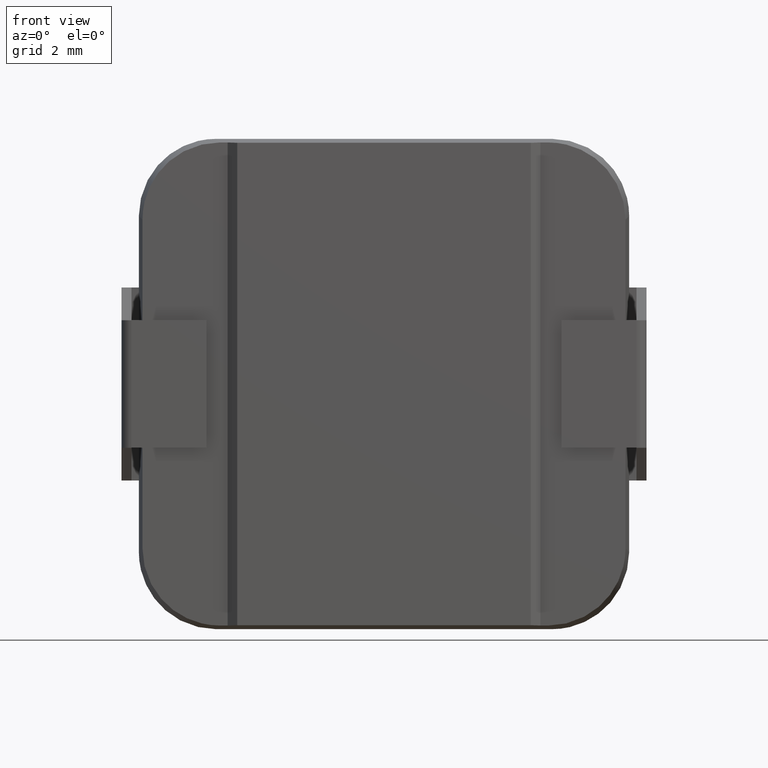
[diagram: clean part render]
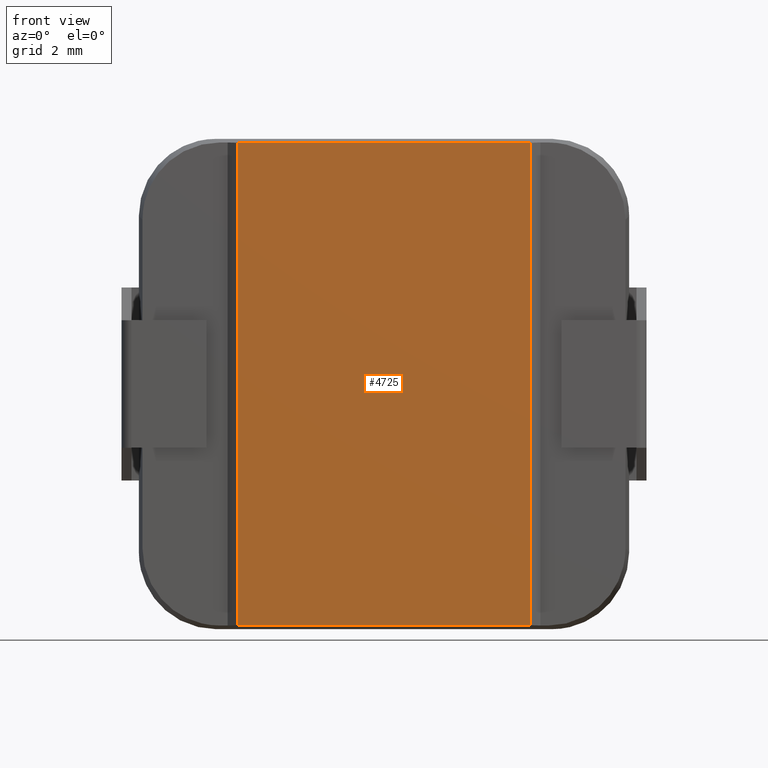
[diagram: same view with one face highlighted and labeled with its STEP entity id]
A machine part, front view. The second image highlights one B-rep face of the part: STEP entity #4725.
In plain terms, the highlighted planar face has unit normal (-0, 1, 0).
Its self-contained STEP definition (entity closure, byte-faithful):
#121 = CARTESIAN_POINT ( 'NONE',  ( 3.800000000000000711, 9.307315673519885459E-16, -6.247983061623334500 ) ) ;
#684 = VECTOR ( 'NONE', #5481, 1000.000000000000000 ) ;
#699 = VECTOR ( 'NONE', #5028, 1000.000000000000000 ) ;
#752 = LINE ( 'NONE', #1662, #684 ) ;
#839 = LINE ( 'NONE', #6047, #699 ) ;
#1124 = CARTESIAN_POINT ( 'NONE',  ( -3.799999999999998934, 0.0000000000000000000, 6.247983061623330059 ) ) ;
#1460 = EDGE_CURVE ( 'NONE', #4351, #5300, #2756, .T. ) ;
#1627 = DIRECTION ( 'NONE',  ( -1.000000000000000000, -0.0000000000000000000, 2.731847993664264205E-16 ) ) ;
#1662 = CARTESIAN_POINT ( 'NONE',  ( -6.350000000000000533, 0.0000000000000000000, 6.247983061623330947 ) ) ;
#1929 = EDGE_LOOP ( 'NONE', ( #5594, #3328, #4066, #5216 ) ) ;
#2015 = DIRECTION ( 'NONE',  ( 0.0000000000000000000, 0.0000000000000000000, 1.000000000000000000 ) ) ;
#2092 = CARTESIAN_POINT ( 'NONE',  ( 3.799999999999995381, 0.0000000000000000000, 6.247983061623329171 ) ) ;
#2366 = DIRECTION ( 'NONE',  ( -0.0000000000000000000, 1.000000000000000000, 0.0000000000000000000 ) ) ;
#2693 = FACE_OUTER_BOUND ( 'NONE', #1929, .T. ) ;
#2756 = LINE ( 'NONE', #4507, #5695 ) ;
#3328 = ORIENTED_EDGE ( 'NONE', *, *, #6263, .T. ) ;
#3547 = LINE ( 'NONE', #5440, #5793 ) ;
#3828 = CARTESIAN_POINT ( 'NONE',  ( -3.799999999999999822, 0.0000000000000000000, -6.247983061623331835 ) ) ;
#4066 = ORIENTED_EDGE ( 'NONE', *, *, #1460, .F. ) ;
#4316 = CARTESIAN_POINT ( 'NONE',  ( 0.0000000000000000000, 0.0000000000000000000, 0.0000000000000000000 ) ) ;
#4339 = EDGE_CURVE ( 'NONE', #4351, #4364, #3547, .T. ) ;
#4351 = VERTEX_POINT ( 'NONE', #121 ) ;
#4364 = VERTEX_POINT ( 'NONE', #2092 ) ;
#4507 = CARTESIAN_POINT ( 'NONE',  ( -6.350000000000000533, 0.0000000000000000000, -6.247983061623330947 ) ) ;
#4725 = ADVANCED_FACE ( 'NONE', ( #2693 ), #4782, .F. ) ;
#4782 = PLANE ( 'NONE',  #5970 ) ;
#4798 = DIRECTION ( 'NONE',  ( 0.0000000000000000000, -0.0000000000000000000, 1.000000000000000000 ) ) ;
#5028 = DIRECTION ( 'NONE',  ( 0.0000000000000000000, 0.0000000000000000000, -1.000000000000000000 ) ) ;
#5042 = EDGE_CURVE ( 'NONE', #6109, #4364, #752, .T. ) ;
#5216 = ORIENTED_EDGE ( 'NONE', *, *, #4339, .T. ) ;
#5300 = VERTEX_POINT ( 'NONE', #3828 ) ;
#5440 = CARTESIAN_POINT ( 'NONE',  ( 3.799999999999999378, 0.0000000000000000000, 0.0000000000000000000 ) ) ;
#5481 = DIRECTION ( 'NONE',  ( 1.000000000000000000, -0.0000000000000000000, -1.365923996832130870E-16 ) ) ;
#5594 = ORIENTED_EDGE ( 'NONE', *, *, #5042, .F. ) ;
#5695 = VECTOR ( 'NONE', #1627, 1000.000000000000000 ) ;
#5793 = VECTOR ( 'NONE', #2015, 1000.000000000000000 ) ;
#5970 = AXIS2_PLACEMENT_3D ( 'NONE', #4316, #2366, #4798 ) ;
#6047 = CARTESIAN_POINT ( 'NONE',  ( -3.799999999999998934, 0.0000000000000000000, 0.0000000000000000000 ) ) ;
#6109 = VERTEX_POINT ( 'NONE', #1124 ) ;
#6263 = EDGE_CURVE ( 'NONE', #6109, #5300, #839, .T. ) ;